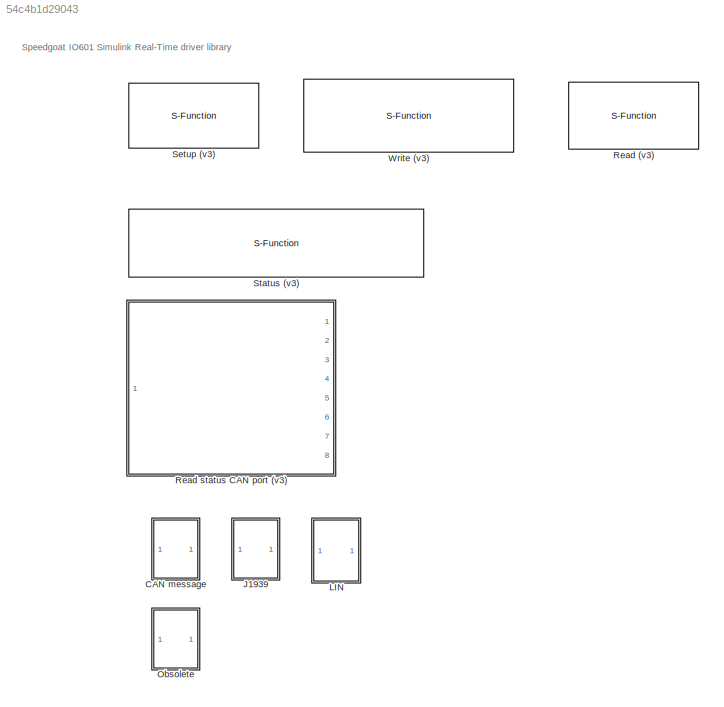
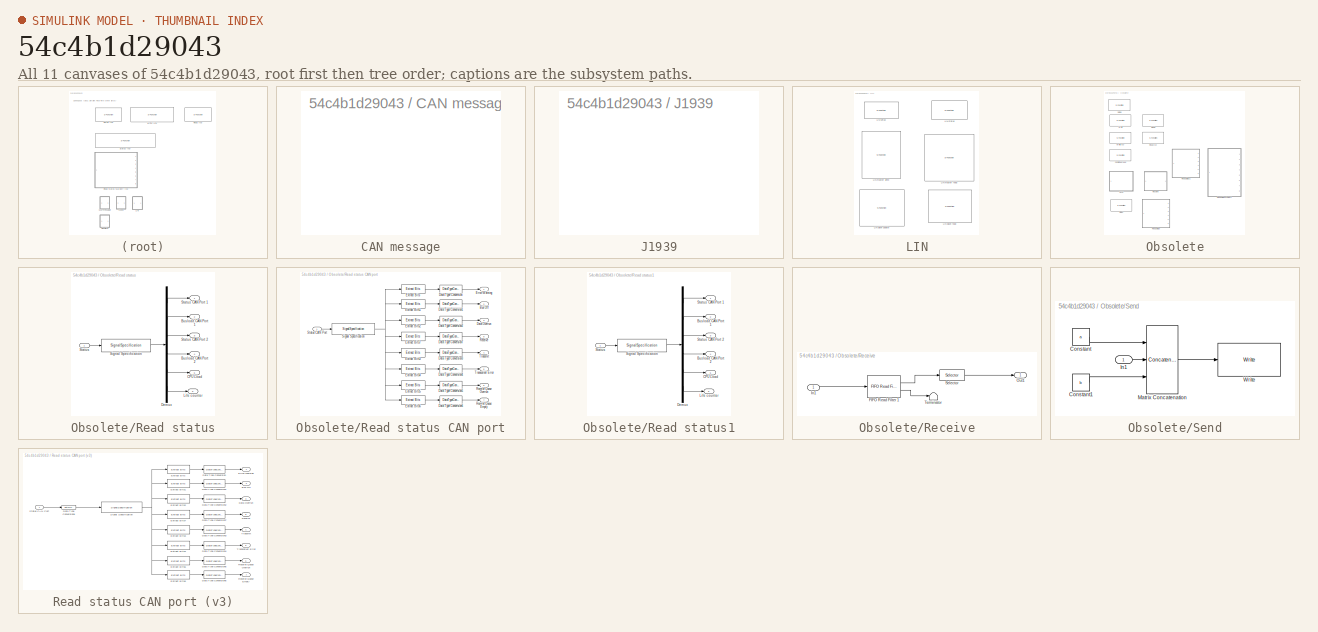
[diagram: thumbnail index - all 11 canvases of the model, root first then tree order]
MODEL slx_54c4b1d29043
KIND library
BLOCK [SubSystem] CAN message
  FunctionWithSeparateData = off
  MaskHideContents = off
  MinAlgLoopOccurrences = off
  Opaque = off
  OpenFcn = canmsglib
  Ports = []
  PropExecContextOutsideSubsystem = off
  RTWSystemCode = Auto
  RequestExecContextInheritance = off
BLOCK [SubSystem] J1939
  FunctionWithSeparateData = off
  MaskHideContents = off
  MinAlgLoopOccurrences = off
  Opaque = off
  OpenFcn = xpcJ1939lib
  Ports = []
  PropExecContextOutsideSubsystem = off
  RTWSystemCode = Auto
  RequestExecContextInheritance = off
BLOCK [SubSystem] LIN
  FunctionWithSeparateData = off
  MaskHideContents = off
  MinAlgLoopOccurrences = off
  Opaque = off
  Ports = []
  PropExecContextOutsideSubsystem = off
  RTWSystemCode = Auto
  RequestExecContextInheritance = off
BLOCK [S-Function] LIN/LIN master read
  EnableBusSupport = off
  FunctionName = sg_IO601_linmasterread_s
  InitFcn = sg_IO601_linmasterread_m(1);
  MaskCallbackString = |||
  MaskDescription = Speedgoat driver block<br>IO601 - LIN Master read<br><br>&copy; 2006 - 2013, Speedgoat GmbH, www.speedgoat.ch
  MaskDisplay = disp('Speedgoat\nIO601\nLIN Master read\nModule: 1');port_label('input',1,'id');port_label('input',2,'length');port_label('output',1,'id');port_label('output',2,'length');port_label('output',3,'data1');port_label('output',4,'data2');port_label('output',5,'data3');port_label('output',6,'data4');port_label('output',7,'data5');port_label('output',8,'data6');port_label('output',9,'data7');port_label('...<+153ch>
  MaskEnableString = on,on,on,on
  MaskHelp = Documentation for this block is not available.
  MaskIconFrame = on
  MaskIconOpaque = on
  MaskIconRotate = none
  MaskIconUnits = autoscale
  MaskInitialization = sg_IO601_linmasterread_m(2, id, nbMessages);
  MaskPortRotate = default
  MaskPromptString = IO601 module identifier:|Number of messages to read:|Sample time:|PCI slot (-1: autosearch):
  MaskSelfModifiable = on
  MaskStyleString = popup(1|2|3|4|5|6|7|8|9|10),edit,edit,edit
  MaskToolTipString = on,on,on,on
  MaskTunableValueString = on,on,on,on
  MaskType = masterreadlin_IO601
  MaskValueString = 1|1|0.001|-1
  MaskVariables = id=@1;nbMessages=@2;ts=@3;pciSlot=@4;
  MaskVisibilityString = on,on,on,off
  Parameters = id, nbMessages, ts, pciSlot
  Ports = [2, 14]
BLOCK [S-Function] LIN/LIN master write
  EnableBusSupport = off
  FunctionName = sg_IO601_linmasterwrite_s
  InitFcn = sg_IO601_linmasterwrite_m(1);
  MaskCallbackString = |||
  MaskDescription = Speedgoat driver block<br>IO601 - LIN Master write<br><br>&copy; 2006 - 2013, Speedgoat GmbH, www.speedgoat.ch
  MaskDisplay = disp('Speedgoat\nIO601\nLIN Master write\nModule: 1');port_label('input',1,'type');port_label('input',2,'id');port_label('input',3,'length');port_label('input',4,'data1');port_label('input',5,'data2');port_label('input',6,'data3');port_label('input',7,'data4');port_label('input',8,'data5');port_label('input',9,'data6');port_label('input',10,'data7');port_label('input',11,'data8');
  MaskEnableString = on,on,on,on
  MaskHelp = Documentation for this block is not available.
  MaskIconFrame = on
  MaskIconOpaque = on
  MaskIconRotate = none
  MaskIconUnits = autoscale
  MaskInitialization = sg_IO601_linmasterwrite_m(2, id, nbMessages);
  MaskPortRotate = default
  MaskPromptString = IO601 module identifier:|Number of messages to write:|Sample time:|PCI slot (-1: autosearch):
  MaskSelfModifiable = on
  MaskStyleString = popup(1|2|3|4|5|6|7|8|9|10),edit,edit,edit
  MaskToolTipString = on,on,on,on
  MaskTunableValueString = on,on,on,on
  MaskType = masterwritelin_IO601
  MaskValueString = 1|1|0.001|-1
  MaskVariables = id=@1;nbMessages=@2;ts=@3;pciSlot=@4;
  MaskVisibilityString = on,on,on,off
  Parameters = id, nbMessages, ts, pciSlot
  Ports = [11]
BLOCK [S-Function] LIN/LIN setup
  EnableBusSupport = off
  FunctionName = sg_IO601_setuplin_s
  InitFcn = sg_IO601_setuplin_m(1);
  MaskCallbackString = |||
  MaskDescription = Speedgoat driver block<br>IO601 - LIN Setup<br><br>&copy; 2006 - 2013, Speedgoat GmbH, www.speedgoat.ch
  MaskDisplay = disp('Speedgoat\nIO601\nLIN Setup\nModule: 1');
  MaskEnableString = on,on,on,on
  MaskHelp = Documentation for this block is not available.
  MaskIconFrame = on
  MaskIconOpaque = on
  MaskIconRotate = none
  MaskIconUnits = autoscale
  MaskInitialization = sg_IO601_setuplin_m(2, id, baudRate, pciSlot);
  MaskPortRotate = default
  MaskPromptString = IO601 module identifier:|Role:|Baudrate (bits/s):|PCI slot (-1: autosearch):
  MaskSelfModifiable = on
  MaskStyleString = popup(1|2|3|4|5|6|7|8|9|10),popup(Slave|Master),edit,edit
  MaskToolTipString = on,on,on,on
  MaskTunableValueString = on,on,on,on
  MaskType = setuplin_IO601
  MaskValueString = 1|Master|20000|-1
  MaskVariables = id=@1;role=@2;baudRate=@3;pciSlot=@4;
  MaskVisibilityString = on,on,on,on
  Parameters = id, baudRate, role, pciSlot
  Ports = []
BLOCK [S-Function] LIN/LIN slave read
  EnableBusSupport = off
  FunctionName = sg_IO601_linslaveread_s
  InitFcn = sg_IO601_linslaveread_m(1);
  MaskCallbackString = |||
  MaskDescription = Speedgoat driver block<br>IO601 - LIN Slave read<br><br>&copy; 2006 - 2013, Speedgoat GmbH, www.speedgoat.ch
  MaskDisplay = disp('Speedgoat\nIO601\nLIN Slave read\nModule: 1');port_label('output',1,'id');port_label('output',2,'length');port_label('output',3,'data1');port_label('output',4,'data2');port_label('output',5,'data3');port_label('output',6,'data4');port_label('output',7,'data5');port_label('output',8,'data6');port_label('output',9,'data7');port_label('output',10,'data8');port_label('output',11,'timestamp');por...<+63ch>
  MaskEnableString = on,on,on,on
  MaskHelp = Documentation for this block is not available.
  MaskIconFrame = on
  MaskIconOpaque = on
  MaskIconRotate = none
  MaskIconUnits = autoscale
  MaskInitialization = sg_IO601_linslaveread_m(2, id, nbMessages);
  MaskPortRotate = default
  MaskPromptString = IO601 module identifier:|Number of messages to read:|Sample time:|PCI slot (-1: autosearch):
  MaskSelfModifiable = on
  MaskStyleString = popup(1|2|3|4|5|6|7|8|9|10),edit,edit,edit
  MaskToolTipString = on,on,on,on
  MaskTunableValueString = on,on,on,on
  MaskType = slavereadlin_IO601
  MaskValueString = 1|1|0.001|-1
  MaskVariables = id=@1;nbMessages=@2;ts=@3;pciSlot=@4;
  MaskVisibilityString = on,on,on,off
  Parameters = id, nbMessages, ts, pciSlot
  Ports = [0, 13]
BLOCK [S-Function] LIN/LIN slave update
  EnableBusSupport = off
  FunctionName = sg_IO601_linslavewrite_s
  InitFcn = sg_IO601_linslavewrite_m(1);
  MaskCallbackString = |||
  MaskDescription = Speedgoat driver block<br>IO601 - LIN Slave update<br><br>&copy; 2006 - 2013, Speedgoat GmbH, www.speedgoat.ch
  MaskDisplay = disp('Speedgoat\nIO601\nLIN Slave update\nModule: 1');port_label('input',1,'id');port_label('input',2,'length');port_label('input',3,'data1');port_label('input',4,'data2');port_label('input',5,'data3');port_label('input',6,'data4');port_label('input',7,'data5');port_label('input',8,'data6');port_label('input',9,'data7');port_label('input',10,'data8');
  MaskEnableString = on,on,on,on
  MaskHelp = Documentation for this block is not available.
  MaskIconFrame = on
  MaskIconOpaque = on
  MaskIconRotate = none
  MaskIconUnits = autoscale
  MaskInitialization = sg_IO601_linslavewrite_m(2, id, nbMessages);
  MaskPortRotate = default
  MaskPromptString = IO601 module identifier:|Number of messages to update:|Sample time:|PCI slot (-1: autosearch):
  MaskSelfModifiable = on
  MaskStyleString = popup(1|2|3|4|5|6|7|8|9|10),edit,edit,edit
  MaskToolTipString = on,on,on,on
  MaskTunableValueString = on,on,on,on
  MaskType = slavewritelin_IO601
  MaskValueString = 1|1|0.001|-1
  MaskVariables = id=@1;nbMessages=@2;ts=@3;pciSlot=@4;
  MaskVisibilityString = on,on,on,off
  Parameters = id, nbMessages, ts, pciSlot
  Ports = [10]
BLOCK [S-Function] LIN/LIN status
  EnableBusSupport = off
  FunctionName = sg_IO601_statuslin_s
  InitFcn = sg_IO601_statuslin_m(1);
  MaskCallbackString = ||
  MaskDescription = Speedgoat driver block<br>IO601 - LIN Status<br><br>&copy; 2006 - 2013, Speedgoat GmbH, www.speedgoat.ch
  MaskDisplay = disp('Speedgoat\nIO601\nLIN Status\nModule: 1');port_label('output',1,'role');port_label('output',2,'bus load');port_label('output',3,'baudrate');port_label('output',4,'error flag');
  MaskEnableString = on,on,on
  MaskHelp = Documentation for this block is not available.
  MaskIconFrame = on
  MaskIconOpaque = on
  MaskIconRotate = none
  MaskIconUnits = autoscale
  MaskInitialization = sg_IO601_statuslin_m(2, id);
  MaskPortRotate = default
  MaskPromptString = IO601 module identifier:|Sample time:|PCI slot (-1: autosearch):
  MaskSelfModifiable = on
  MaskStyleString = popup(1|2|3|4|5|6|7|8|9|10),edit,edit
  MaskToolTipString = on,on,on
  MaskTunableValueString = on,on,on
  MaskType = statuslin_IO601
  MaskValueString = 1|0.001|[2,4]
  MaskVariables = id=@1;ts=@2;pciSlot=@3;
  MaskVisibilityString = on,on,off
  Parameters = ts, pciSlot
  Ports = [0, 4]
BLOCK [SubSystem] Obsolete
  FunctionWithSeparateData = off
  MaskHideContents = off
  MinAlgLoopOccurrences = off
  Opaque = off
  Ports = []
  PropExecContextOutsideSubsystem = off
  RTWSystemCode = Auto
  RequestExecContextInheritance = off
BLOCK [S-Function] Obsolete/Combined read
  EnableBusSupport = off
  FunctionName = sg_IO601_cread_s
  InitFcn = sg_IO601_cread_m(1);
  MaskCallbackString = ||||
  MaskDescription = Speedgoat driver block<br>IO601 - Combined read<br><br>&copy; 2006 - 2013, Speedgoat GmbH, www.speedgoat.ch
  MaskDisplay = disp('Speedgoat\nIO601\nCombined read\nModule: 1');
  MaskEnableString = on,on,on,on,on
  MaskHelp = web(['<path>'],'-helpbrowser');
  MaskIconFrame = on
  MaskIconOpaque = on
  MaskIconRotate = none
  MaskIconUnits = autoscale
  MaskInitialization = maskDisplay= sg_IO601_cread_m(2, id);
  MaskPortRotate = default
  MaskPromptString = IO601 module identifier:|Receive queue read depth [CAN port 1, CAN port 2]:|Show status output port|Sample time:|PCI slot (-1: autosearch):
  MaskSelfModifiable = on
  MaskStyleString = popup(1|2|3|4|5|6|7|8|9|10),edit,checkbox,edit,edit
  MaskToolTipString = on,on,on,on,on
  MaskTunableValueString = on,on,on,on,on
  MaskType = cread_IO601
  MaskValueString = 1|[1,0]|off|0.001|0
  MaskVariables = id=@1;depth=@2;status=@3;sampletime=@4;pciSlot=@5;
  MaskVisibilityString = on,on,on,on,off
  Parameters = id, depth, status, sampletime, pciSlot
  Ports = [0, 1]
BLOCK [S-Function] Obsolete/Read
  EnableBusSupport = off
  FunctionName = sg_IO601_read_s
  InitFcn = sg_IO601_read_m(1);
  MaskCallbackString = |||||
  MaskDescription = Speedgoat driver block<br>IO601 - Read<br><br>&copy; 2006 - 2013, Speedgoat GmbH, www.speedgoat.ch
  MaskDisplay = disp('Speedgoat\nIO601\nRead\nModule: 1');
  MaskEnableString = on,on,on,on,on,on
  MaskHelp = web(['<path>'],'-helpbrowser');
  MaskIconFrame = on
  MaskIconOpaque = on
  MaskIconRotate = none
  MaskIconUnits = autoscale
  MaskInitialization = maskDisplay= sg_IO601_read_m(2, id);
  MaskPortRotate = default
  MaskPromptString = IO601 module identifier:|CAN port:|Receive queue read depth:|Show status output port|Sample time:|PCI slot (-1: autosearch):
  MaskSelfModifiable = on
  MaskStyleString = popup(1|2|3|4|5|6|7|8|9|10),popup(1|2),edit,checkbox,edit,edit
  MaskToolTipString = on,on,on,on,on,on
  MaskTunableValueString = on,on,on,on,on,on
  MaskType = read_IO601
  MaskValueString = 1|1|1|off|0.001|0
  MaskVariables = id=@1;port=@2;depth=@3;status=@4;sampletime=@5;pciSlot=@6;
  MaskVisibilityString = on,on,on,off,on,off
  Parameters = id, port, depth, status, sampletime, pciSlot
  Ports = [0, 1]
BLOCK [S-Function] Obsolete/Read (v2)
  EnableBusSupport = off
  FunctionName = sg_IO601_read2_s
  InitFcn = sg_IO601_read_m(1);
  MaskCallbackString = ||||||
  MaskDescription = Speedgoat driver block<br>IO601 - Read<br><br>&copy; 2006 - 2013, Speedgoat GmbH, www.speedgoat.ch
  MaskDisplay = disp('Speedgoat\nIO601\nRead\nModule: 1');
  MaskEnableString = on,on,on,on,on,on,on
  MaskHelp = web(['<path>'],'-helpbrowser');
  MaskIconFrame = on
  MaskIconOpaque = on
  MaskIconRotate = none
  MaskIconUnits = autoscale
  MaskInitialization = maskDisplay= sg_IO601_read_m(2, id);
  MaskPortRotate = default
  MaskPromptString = IO601 module identifier:|Output format:|CAN port:|Receive queue read depth:|Show status output port|Sample time:|PCI slot (-1: autosearch):
  MaskSelfModifiable = on
  MaskStyleString = popup(1|2|3|4|5|6|7|8|9|10),popup(Matrix of doubles (legacy)|Vector of CAN_MESSAGE plus count),popup(1|2),edit,checkbox,edit,edit
  MaskToolTipString = on,on,on,on,on,on,on
  MaskTunableValueString = on,on,on,on,on,on,on
  MaskType = read_IO601
  MaskValueString = 1|Vector of CAN_MESSAGE plus count|1|1|off|0.001|-1
  MaskVariables = id=@1;outputFormat=@2;port=@3;depth=@4;status=@5;sampletime=@6;pciSlot=@7;
  MaskVisibilityString = on,on,on,on,off,on,off
  Parameters = id, port, depth, outputFormat, status, sampletime, pciSlot
  Ports = [0, 2]
BLOCK [SubSystem] Obsolete/Read status
  FunctionWithSeparateData = off
  MaskDescription = This block accepts as an input the output of a Status block and outputs the six status elements as individual ports. This block is just a graphical subsystem.
  MaskHideContents = off
  MaskIconFrame = on
  MaskIconOpaque = on
  MaskIconRotate = none
  MaskIconUnits = autoscale
  MaskPortRotate = default
  MaskType = readstatus_IO601
  MinAlgLoopOccurrences = off
  Opaque = off
  Ports = [1, 6]
  PropExecContextOutsideSubsystem = off
  RTWSystemCode = Auto
  RequestExecContextInheritance = off
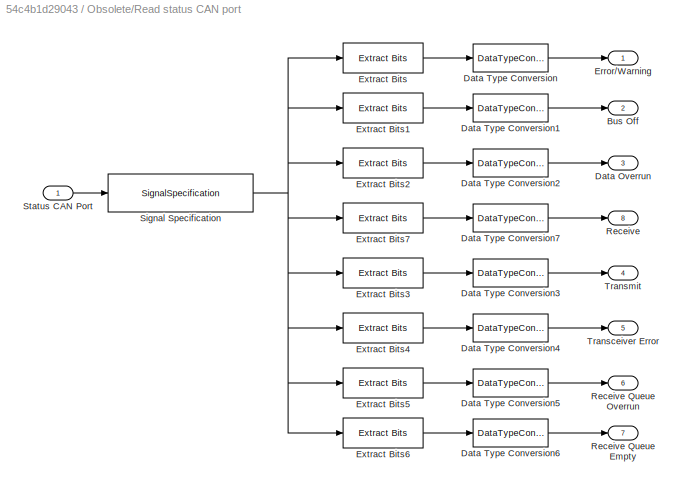
BLOCK [SubSystem] Obsolete/Read status CAN port
  FunctionWithSeparateData = off
  MaskDescription = This block accepts as an input the output of a CAN Port Status signal from the Read status block and outputs 8 individual status signals.  This block is just a graphical subsystem.
  MaskHideContents = off
  MaskIconFrame = on
  MaskIconOpaque = on
  MaskIconRotate = none
  MaskIconUnits = autoscale
  MaskPortRotate = default
  MaskType = readstatuscanport_IO601
  MinAlgLoopOccurrences = off
  Opaque = off
  Ports = [1, 8]
  PropExecContextOutsideSubsystem = off
  RTWSystemCode = Auto
  RequestExecContextInheritance = off
BLOCK [Outport] Obsolete/Read status CAN port/Bus Off
  IconDisplay = Port number
  Port = 2
BLOCK [Outport] Obsolete/Read status CAN port/Data Overrun
  IconDisplay = Port number
  Port = 3
BLOCK [DataTypeConversion] Obsolete/Read status CAN port/Data Type Conversion
  OutDataTypeStr = boolean
  RndMeth = Floor
  SaturateOnIntegerOverflow = off
BLOCK [DataTypeConversion] Obsolete/Read status CAN port/Data Type Conversion1
  OutDataTypeStr = boolean
  RndMeth = Floor
  SaturateOnIntegerOverflow = off
BLOCK [DataTypeConversion] Obsolete/Read status CAN port/Data Type Conversion2
  OutDataTypeStr = boolean
  RndMeth = Floor
  SaturateOnIntegerOverflow = off
BLOCK [DataTypeConversion] Obsolete/Read status CAN port/Data Type Conversion3
  OutDataTypeStr = boolean
  RndMeth = Floor
  SaturateOnIntegerOverflow = off
BLOCK [DataTypeConversion] Obsolete/Read status CAN port/Data Type Conversion4
  OutDataTypeStr = boolean
  RndMeth = Floor
  SaturateOnIntegerOverflow = off
BLOCK [DataTypeConversion] Obsolete/Read status CAN port/Data Type Conversion5
  OutDataTypeStr = boolean
  RndMeth = Floor
  SaturateOnIntegerOverflow = off
BLOCK [DataTypeConversion] Obsolete/Read status CAN port/Data Type Conversion6
  OutDataTypeStr = boolean
  RndMeth = Floor
  SaturateOnIntegerOverflow = off
BLOCK [DataTypeConversion] Obsolete/Read status CAN port/Data Type Conversion7
  OutDataTypeStr = boolean
  RndMeth = Floor
  SaturateOnIntegerOverflow = off
BLOCK [Outport] Obsolete/Read status CAN port/Error//Warning
  IconDisplay = Port number
BLOCK [Reference] Obsolete/Read status CAN port/Extract Bits  REF=simulink/Logic and Bit
Operations/Extract Bits
  Ports = [1, 1]
  SourceBlock = simulink/Logic and Bit\nOperations/Extract Bits
  SourceType = Extract Bits
  bitIdxRange = [1]
  bitsToExtract = Range of bits
  numBits = 8
  outScalingMode = Preserve fixed-point scaling
BLOCK [Reference] Obsolete/Read status CAN port/Extract Bits1  REF=simulink/Logic and Bit
Operations/Extract Bits
  Ports = [1, 1]
  SourceBlock = simulink/Logic and Bit\nOperations/Extract Bits
  SourceType = Extract Bits
  bitIdxRange = [2]
  bitsToExtract = Range of bits
  numBits = 8
  outScalingMode = Preserve fixed-point scaling
BLOCK [Reference] Obsolete/Read status CAN port/Extract Bits2  REF=simulink/Logic and Bit
Operations/Extract Bits
  Ports = [1, 1]
  SourceBlock = simulink/Logic and Bit\nOperations/Extract Bits
  SourceType = Extract Bits
  bitIdxRange = [3]
  bitsToExtract = Range of bits
  numBits = 8
  outScalingMode = Preserve fixed-point scaling
BLOCK [Reference] Obsolete/Read status CAN port/Extract Bits3  REF=simulink/Logic and Bit
Operations/Extract Bits
  Ports = [1, 1]
  SourceBlock = simulink/Logic and Bit\nOperations/Extract Bits
  SourceType = Extract Bits
  bitIdxRange = [5]
  bitsToExtract = Range of bits
  numBits = 8
  outScalingMode = Preserve fixed-point scaling
BLOCK [Reference] Obsolete/Read status CAN port/Extract Bits4  REF=simulink/Logic and Bit
Operations/Extract Bits
  Ports = [1, 1]
  SourceBlock = simulink/Logic and Bit\nOperations/Extract Bits
  SourceType = Extract Bits
  bitIdxRange = [6]
  bitsToExtract = Range of bits
  numBits = 8
  outScalingMode = Preserve fixed-point scaling
BLOCK [Reference] Obsolete/Read status CAN port/Extract Bits5  REF=simulink/Logic and Bit
Operations/Extract Bits
  Ports = [1, 1]
  SourceBlock = simulink/Logic and Bit\nOperations/Extract Bits
  SourceType = Extract Bits
  bitIdxRange = [8]
  bitsToExtract = Range of bits
  numBits = 8
  outScalingMode = Preserve fixed-point scaling
BLOCK [Reference] Obsolete/Read status CAN port/Extract Bits6  REF=simulink/Logic and Bit
Operations/Extract Bits
  Ports = [1, 1]
  SourceBlock = simulink/Logic and Bit\nOperations/Extract Bits
  SourceType = Extract Bits
  bitIdxRange = [9]
  bitsToExtract = Range of bits
  numBits = 8
  outScalingMode = Preserve fixed-point scaling
BLOCK [Reference] Obsolete/Read status CAN port/Extract Bits7  REF=simulink/Logic and Bit
Operations/Extract Bits
  Ports = [1, 1]
  SourceBlock = simulink/Logic and Bit\nOperations/Extract Bits
  SourceType = Extract Bits
  bitIdxRange = [4]
  bitsToExtract = Range of bits
  numBits = 8
  outScalingMode = Preserve fixed-point scaling
BLOCK [Outport] Obsolete/Read status CAN port/Receive
  IconDisplay = Port number
  Port = 8
BLOCK [Outport] Obsolete/Read status CAN port/Receive Queue Empty
  IconDisplay = Port number
  Port = 7
BLOCK [Outport] Obsolete/Read status CAN port/Receive Queue Overrun
  IconDisplay = Port number
  Port = 6
BLOCK [SignalSpecification] Obsolete/Read status CAN port/Signal Specification
  Dimensions = 1
  OutDataTypeStr = uint16
  SignalType = real
BLOCK [Inport] Obsolete/Read status CAN port/Status CAN Port
  IconDisplay = Port number
BLOCK [Outport] Obsolete/Read status CAN port/Transceiver Error
  IconDisplay = Port number
  Port = 5
BLOCK [Outport] Obsolete/Read status CAN port/Transmit
  IconDisplay = Port number
  Port = 4
BLOCK [Outport] Obsolete/Read status/Busload CAN Port 1
  IconDisplay = Port number
  Port = 2
BLOCK [Outport] Obsolete/Read status/Busload CAN Port 2
  IconDisplay = Port number
  Port = 4
BLOCK [Outport] Obsolete/Read status/CPU Load
  IconDisplay = Port number
  Port = 5
BLOCK [Demux] Obsolete/Read status/Demux
  DisplayOption = bar
  Outputs = 6
  Ports = [1, 6]
BLOCK [Outport] Obsolete/Read status/Life counter
  IconDisplay = Port number
  Port = 6
BLOCK [SignalSpecification] Obsolete/Read status/Signal Specification
  Dimensions = 6
  OutDataTypeStr = uint16
  SignalType = real
BLOCK [Inport] Obsolete/Read status/Status
  IconDisplay = Port number
BLOCK [Outport] Obsolete/Read status/Status CAN Port 1
  IconDisplay = Port number
BLOCK [Outport] Obsolete/Read status/Status CAN Port 2
  IconDisplay = Port number
  Port = 3
BLOCK [SubSystem] Obsolete/Read status1
  FunctionWithSeparateData = off
  MaskDescription = This block accepts as an input the output of a Status block and outputs the six status elements as individual ports. This block is just a graphical subsystem.
  MaskHideContents = off
  MaskIconFrame = on
  MaskIconOpaque = on
  MaskIconRotate = none
  MaskIconUnits = autoscale
  MaskPortRotate = default
  MaskType = readstatus_IO601
  MinAlgLoopOccurrences = off
  Opaque = off
  Ports = [1, 6]
  PropExecContextOutsideSubsystem = off
  RTWSystemCode = Auto
  RequestExecContextInheritance = off
BLOCK [Outport] Obsolete/Read status1/Busload CAN Port 1
  IconDisplay = Port number
  Port = 2
BLOCK [Outport] Obsolete/Read status1/Busload CAN Port 2
  IconDisplay = Port number
  Port = 4
BLOCK [Outport] Obsolete/Read status1/CPU Load
  IconDisplay = Port number
  Port = 5
BLOCK [Demux] Obsolete/Read status1/Demux
  DisplayOption = bar
  Outputs = 6
  Ports = [1, 6]
BLOCK [Outport] Obsolete/Read status1/Life counter
  IconDisplay = Port number
  Port = 6
BLOCK [SignalSpecification] Obsolete/Read status1/Signal Specification
  Dimensions = 6
  OutDataTypeStr = uint16
  SignalType = real
BLOCK [Inport] Obsolete/Read status1/Status
  IconDisplay = Port number
BLOCK [Outport] Obsolete/Read status1/Status CAN Port 1
  IconDisplay = Port number
BLOCK [Outport] Obsolete/Read status1/Status CAN Port 2
  IconDisplay = Port number
  Port = 3
BLOCK [SubSystem] Obsolete/Receive
  FunctionWithSeparateData = off
  InitFcn = sg_IO601_receive_m(1);
  MaskCallbackString = |||
  MaskDescription = Speedgoat driver block<br>IO601 - Receive<br><br>&copy; 2006 - 2013, Speedgoat GmbH, www.speedgoat.ch
  MaskDisplay = disp('Speedgoat\nIO601\nReceive\nModule: 1\nCAN any:  Std\nId: 0 (0x0)');
  MaskEnableString = on,on,on,on
  MaskHelp = Documentation for this block is not available.
  MaskHideContents = off
  MaskIconFrame = on
  MaskIconOpaque = on
  MaskIconRotate = none
  MaskIconUnits = autoscale
  MaskInitialization = maskDisplay= sg_IO601_receive_m(2, id, canPort, canType, canId);
  MaskPortRotate = default
  MaskPromptString = IO601 module identifier:|CAN port:|CAN message type:|CAN identifier:
  MaskSelfModifiable = on
  MaskStyleString = popup(1|2|3|4|5|6|7|8|9|10),popup(Any|CAN 1|CAN 2),popup(Standard (11-bit)|Extended (29-bit)),edit
  MaskToolTipString = on,on,on,on
  MaskTunableValueString = on,on,on,on
  MaskType = receive_IO601
  MaskValueString = 1|Any|Standard (11-bit)|0
  MaskVariables = id=@1;canPort=@2;canType=@3;canId=@4;
  MaskVisibilityString = on,on,on,on
  MinAlgLoopOccurrences = off
  Opaque = off
  Ports = [1, 1]
  PropExecContextOutsideSubsystem = off
  RTWSystemCode = Auto
  RequestExecContextInheritance = off
BLOCK [Reference] Obsolete/Receive/FIFO Read Filter  1  REF=xpclib/CAN/Softing/CAN-AC2-PCI
SJA 1000/FIFO Mode/FIFO Read Filter 
  Ports = [1, 2]
  SourceBlock = xpclib/CAN/Softing/CAN-AC2-PCI\nSJA 1000/FIFO Mode/FIFO Read Filter
  SourceType = canrcvfifofilter
  ctypein = SDF
  direction = Include
  ident = canId
  identsel = Include
  portin = Any
BLOCK [Inport] Obsolete/Receive/In1
  IconDisplay = Port number
BLOCK [Outport] Obsolete/Receive/Out1
  IconDisplay = Port number
BLOCK [Selector] Obsolete/Receive/Selector
  Indices = [6]
  InputPortWidth = 6
  Ports = [1, 1]
BLOCK [Terminator] Obsolete/Receive/Terminator
BLOCK [SubSystem] Obsolete/Send
  FunctionWithSeparateData = off
  InitFcn = sg_IO601_send_m(1);
  MaskCallbackString = |||||
  MaskDescription = Speedgoat driver block<br>IO601 - Send<br><br>&copy; 2006 - 2013, Speedgoat GmbH, www.speedgoat.ch
  MaskDisplay = disp('Speedgoat\nIO601\nSend\nModule: 1\nCAN 1:  Std, 8\nId: 0 (0x0)');
  MaskEnableString = on,on,on,on,on,on
  MaskHelp = Documentation for this block is not available.
  MaskHideContents = off
  MaskIconFrame = on
  MaskIconOpaque = on
  MaskIconRotate = none
  MaskIconUnits = autoscale
  MaskInitialization = [a,b,maskDisplay]=sg_IO601_send_m(2, id, canPort, canType, canId, canSize);
  MaskPortRotate = default
  MaskPromptString = IO601 module identifier:|CAN port:|CAN message type:|CAN identifier:|CAN data frame size:|Sample time:
  MaskSelfModifiable = on
  MaskStyleString = popup(1|2|3|4|5|6|7|8|9|10),popup(CAN 1|CAN 2),popup(Standard (11-bit)|Extended (29-bit)),edit,edit,edit
  MaskToolTipString = on,on,on,on,on,on
  MaskTunableValueString = on,on,on,on,on,on
  MaskType = send_IO601
  MaskValueString = 1|CAN 1|Standard (11-bit)|0|8|0.001
  MaskVariables = id=@1;canPort=@2;canType=@3;canId=@4;canSize=@5;ts=@6;
  MaskVisibilityString = on,on,on,on,on,on
  MinAlgLoopOccurrences = off
  Opaque = off
  Ports = [1]
  PropExecContextOutsideSubsystem = off
  RTWSystemCode = Auto
  RequestExecContextInheritance = off
BLOCK [Constant] Obsolete/Send/Constant
  Value = a
  VectorParams1D = off
BLOCK [Constant] Obsolete/Send/Constant1
  Value = b
  VectorParams1D = off
BLOCK [Inport] Obsolete/Send/In1
  IconDisplay = Port number
  PortDimensions = 1
BLOCK [Concatenate] Obsolete/Send/Matrix Concatenation
  ConcatenateDimension = 2
  Mode = Multidimensional array
  NumInputs = 3
  Ports = [3, 1]
BLOCK [Reference] Obsolete/Send/Write  REF=speedgoatlib_IO601/Obsolete/Write
  Ports = [1]
  SourceBlock = speedgoatlib_IO601/Obsolete/Write
  SourceType = write_IO601
  id = 1
  pciSlot = 0
  sampletime = ts
  status = off
BLOCK [S-Function] Obsolete/Setup
  EnableBusSupport = off
  FunctionName = sg_IO601_setup_s
  InitFcn = sg_IO601_setup_m(1);
  MaskCallbackString = sg_IO601_setup_m(2);||||||||||||||||||
  MaskDescription = Speedgoat driver block<br>IO601 - Setup<br><br>&copy; 2006 - 2013, Speedgoat GmbH, www.speedgoat.ch
  MaskDisplay = disp('Speedgoat\nIO601\nSetup\nModule: 1');
  MaskEnableString = on,on,on,on,on,on,on,on,on,on,on,on,on,on,on,on,on,on,on
  MaskHelp = web(['<path>'],'-helpbrowser');
  MaskIconFrame = on
  MaskIconOpaque = on
  MaskIconRotate = none
  MaskIconUnits = autoscale
  MaskInitialization = can1str='';can2str='';\nif can1bus==2, can1str=' LS'; end;if can2bus==2, can2str=' LS'; end;\ninitarray=0;\ntermarray=0;\n[can1UserBR, can2UserBR, initarray, termarray]= sg_IO601_setup_m(3, id, can1bus, can1Baudrate, can1UserBR, acc1, filter1std, ...\n                filter1ext, can2bus, can2Baudrate, can2UserBR, acc2, filter2std, filter2ext, ...\n                init, term, pciSlot);
  MaskPortRotate = default
  MaskPromptString = Parameter group:|IO601 module identifier:|Enable|Physical bus:|Baud rate:|User defined baud rate [BRP, SJW, TSEG1, TSEG2]:|Acceptance [StdMask, StdCode, ExtMask, ExtCode]:|Standard identifier receive filter vector:|Extended identifier receive filter vector:|Enable|Physical bus:|Baud rate:|User defined baud rate [BRP, SJW, TSEG1, TSEG2]:|Acceptance [StdMask, StdCode, ExtMask, ExtCode]:|Standard ide...<+165ch>
  MaskSelfModifiable = on
  MaskStyleString = popup(Module setup|CAN 1 port setup|CAN 2 port setup|Initialisation and termination setup),popup(1|2|3|4|5|6|7|8|9|10),checkbox,popup(Highspeed |Lowspeed),popup(1 MBaud|800 kBaud|500 kBaud|250 kBaud|125 kBaud|100 kBaud|10 kBaud|User defined),edit,edit,edit,edit,checkbox,popup(Highspeed|Lowspeed),popup(1 MBaud|800 kBaud|500 kBaud|250 kBaud|125 kBaud|100 kBaud|10 kBaud|User defined),edit,edit,edit,e...<+18ch>
  MaskToolTipString = on,on,on,on,on,on,on,on,on,on,on,on,on,on,on,on,on,on,on
  MaskTunableValueString = on,on,on,on,on,on,on,on,on,on,on,on,on,on,on,on,on,on,on
  MaskType = setup_IO601
  MaskValueString = Module setup|1|on|Highspeed |1 MBaud|[1,1,5,2]|[0,0,0,0]|[]|[]|on|Highspeed|1 MBaud|[1,1,5,2]|[0,0,0,0]|[]|[]|[]|[]|-1
  MaskVariables = group=@1;id=@2;can1enable=@3;can1bus=@4;can1Baudrate=@5;can1UserBR=@6;acc1=@7;filter1std=@8;filter1ext=@9;can2enable=@10;can2bus=@11;can2Baudrate=@12;can2UserBR=@13;acc2=@14;filter2std=@15;filter2ext=@16;init=@17;term=@18;pciSlot=@19;
  MaskVisibilityString = on,on,off,off,off,off,off,off,off,off,off,off,off,off,off,off,off,off,on
  Parameters = id, can1enable, can1bus, can1UserBR, acc1, filter1std, filter1ext, can2enable, can2bus, can2UserBR, acc2, filter2std, filter2ext, initarray, termarray, pciSlot
  Ports = []
BLOCK [S-Function] Obsolete/Status
  EnableBusSupport = off
  FunctionName = sg_IO601_status_s
  InitFcn = sg_IO601_status_m(1);
  MaskCallbackString = ||
  MaskDescription = Speedgoat driver block<br>IO601 - Status<br><br>&copy; 2006 - 2013, Speedgoat GmbH, www.speedgoat.ch
  MaskDisplay = disp('Speedgoat\nIO601\nStatus\nModule: 1');
  MaskEnableString = on,on,on
  MaskHelp = web(['<path>'],'-helpbrowser');
  MaskIconFrame = on
  MaskIconOpaque = on
  MaskIconRotate = none
  MaskIconUnits = autoscale
  MaskInitialization = maskDisplay= sg_IO601_status_m(2, id);
  MaskPortRotate = default
  MaskPromptString = IO601 module identifier:|Sample time:|PCI slot (-1: autosearch):
  MaskSelfModifiable = on
  MaskStyleString = popup(1|2|3|4|5|6|7|8|9|10),edit,edit
  MaskToolTipString = on,on,on
  MaskTunableValueString = on,on,on
  MaskType = status_IO601
  MaskValueString = 1|0.001|0
  MaskVariables = id=@1;sampletime=@2;pciSlot=@3;
  MaskVisibilityString = on,on,off
  Parameters = id, sampletime, pciSlot
  Ports = [0, 1]
BLOCK [S-Function] Obsolete/Write
  EnableBusSupport = off
  FunctionName = sg_IO601_write_s
  InitFcn = sg_IO601_write_m(1);
  MaskCallbackString = |||
  MaskDescription = Speedgoat driver block<br>IO601 - Write<br><br>&copy; 2006 - 2013, Speedgoat GmbH, www.speedgoat.ch
  MaskDisplay = disp('Speedgoat\nIO601\nWrite\nModule: 1');
  MaskEnableString = on,on,on,on
  MaskHelp = web(['<path>'],'-helpbrowser');
  MaskIconFrame = on
  MaskIconOpaque = on
  MaskIconRotate = none
  MaskIconUnits = autoscale
  MaskInitialization = maskDisplay= sg_IO601_write_m(2, id);
  MaskPortRotate = default
  MaskPromptString = IO601 module identifier:|Show status output port|Sample time:|PCI slot (-1: autosearch):
  MaskSelfModifiable = on
  MaskStyleString = popup(1|2|3|4|5|6|7|8|9|10),checkbox,edit,edit
  MaskToolTipString = on,on,on,on
  MaskTunableValueString = on,on,on,on
  MaskType = write_IO601
  MaskValueString = 1|off|0.001|0
  MaskVariables = id=@1;status=@2;sampletime=@3;pciSlot=@4;
  MaskVisibilityString = on,on,on,off
  Parameters = id, status, sampletime, pciSlot
  Ports = [1]
BLOCK [S-Function] Obsolete/Write (v2)
  EnableBusSupport = off
  FunctionName = sg_IO601_write2_s
  InitFcn = sg_IO601_write_m(1);
  MaskCallbackString = |||||||
  MaskDescription = Speedgoat driver block<br>IO601 - Write<br><br>&copy; 2006 - 2013, Speedgoat GmbH, www.speedgoat.ch
  MaskDisplay = disp('Speedgoat\nIO601\nWrite\nModule: 1');
  MaskEnableString = on,on,on,on,on,on,on,on
  MaskHelp = web(['<path>'],'-helpbrowser');
  MaskIconFrame = on
  MaskIconOpaque = on
  MaskIconRotate = none
  MaskIconUnits = autoscale
  MaskInitialization = maskDisplay= sg_IO601_write_m(2, id);
  MaskPortRotate = default
  MaskPromptString = IO601 module identifier:|Show input count port|data input port type:|Port (if input is CAN_MESSAGE):|Max CAN Message Transmit (Per Sample Time):|Show status output port|Sample time:|PCI slot (-1: autosearch):
  MaskSelfModifiable = on
  MaskStyleString = popup(1|2|3|4|5|6|7|8|9|10),checkbox,popup(Matrix of double (m*5 or m*6)|CAN_MESSAGE),popup(1|2),edit,checkbox,edit,edit
  MaskToolTipString = on,on,on,on,on,on,on,on
  MaskTunableValueString = on,on,on,on,on,on,on,on
  MaskType = write_IO601
  MaskValueString = 1|on|CAN_MESSAGE|2|20|off|0.001|-1
  MaskVariables = id=@1;count=@2;inputType=@3;port=@4;maxMsg=@5;status=@6;sampletime=@7;pciSlot=@8;
  MaskVisibilityString = on,on,on,on,on,on,on,off
  Parameters = id, status, inputType, count, maxMsg, port, sampletime, pciSlot
  Ports = [2]
BLOCK [S-Function] Read (v3)
  EnableBusSupport = off
  FunctionName = sg_IO601_read_s_3
  InitFcn = sg_init_modules('IO601', false, 'setup_IO601_3');
  MaskCallbackString = |||||||
  MaskDescription = Speedgoat driver block<br>IO601 - Read<br><br>&copy; 2006 - 2014, Speedgoat GmbH, www.speedgoat.ch
  MaskDisplay = disp('Speedgoat\nIO601\nRead\nModule: 1');port_label('output', 1, 'CAN port 1');port_label('output', 2, 'count 1');port_label('output', 3, 'CAN port 2');port_label('output', 4, 'count 2');
  MaskEnableString = on,on,on,on,on,on,on,on
  MaskHelp = web(['<userpath>\Documents\MATLAB\trunk\thirdpartydrivers\sg_help\comms\dialog_fields_io601_read.htm'],'-helpbrowser');
  MaskIconFrame = on
  MaskIconOpaque = on
  MaskIconRotate = none
  MaskIconUnits = autoscale
  MaskInitialization = sg_IO601_read_m_3(id, port1, port2);
  MaskPortRotate = default
  MaskPromptString = IO601 module identifier:|Output port datatype:|Show CAN message output port 1|Show CAN message output port 2|Receive queue read depth:|Receive queue read depth:|Sample time:|PCI slot (-1: autosearch):
  MaskSelfModifiable = on
  MaskStyleString = popup(1|2|3|4|5|6|7|8|9|10),popup(Matrix of doubles (legacy)|Vector of CAN_MESSAGE),checkbox,checkbox,edit,edit,edit,edit
  MaskTabNameString = Module setup,Input and output port configuration,Input and output port configuration,Input and output port configuration,CAN port 1,CAN port 2,Module setup,Module setup
  MaskToolTipString = on,on,on,on,on,on,on,on
  MaskTunableValueString = on,on,on,on,on,on,on,on
  MaskType = read_IO601_3
  MaskValueString = 1|Matrix of doubles (legacy)|on|on|4|4|0.001|-1
  MaskVariables = id=@1;outputFormat=@2;port1=@3;port2=@4;depth1=@5;depth2=@6;sampletime=@7;pciSlot=@8;
  MaskVisibilityString = on,on,on,on,on,on,on,off
  Parameters = depth1, depth2, outputFormat, port1, port2, sampletime, pciSlot
  Ports = [0, 4]
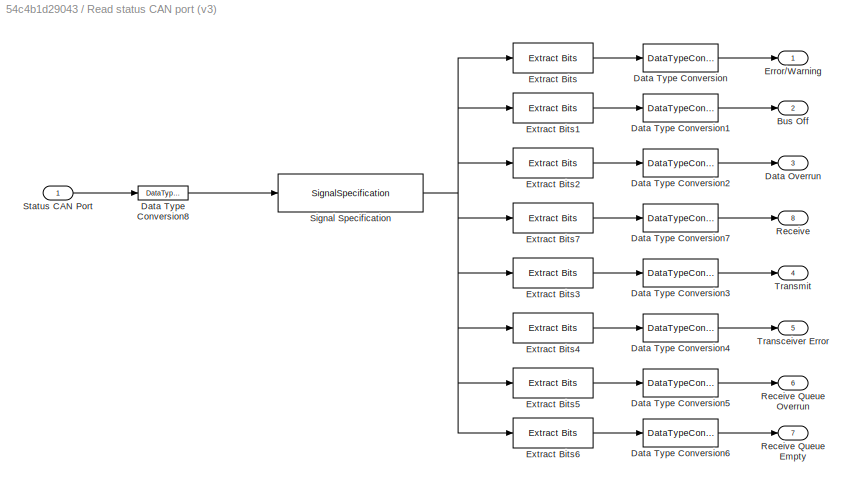
BLOCK [SubSystem] Read status CAN port (v3)
  FunctionWithSeparateData = off
  MaskDescription = This block accepts as an input the output of a CAN Port Status signal from the Read status block and outputs 8 individual status signals.  This block is just a graphical subsystem.
  MaskHelp = web(fullfile(speedgoatroot,'sg_help','comms','read_status_can_port_driver_block_io601.htm'), '-helpbrowser');
  MaskHideContents = off
  MaskIconFrame = on
  MaskIconOpaque = on
  MaskIconRotate = none
  MaskIconUnits = autoscale
  MaskPortRotate = default
  MaskType = readstatuscanport_IO601
  MinAlgLoopOccurrences = off
  Opaque = off
  Ports = [1, 8]
  PropExecContextOutsideSubsystem = off
  RTWSystemCode = Auto
  RequestExecContextInheritance = off
BLOCK [Outport] Read status CAN port (v3)/Bus Off
  IconDisplay = Port number
  Port = 2
BLOCK [Outport] Read status CAN port (v3)/Data Overrun
  IconDisplay = Port number
  Port = 3
BLOCK [DataTypeConversion] Read status CAN port (v3)/Data Type Conversion
  OutDataTypeStr = boolean
  RndMeth = Floor
  SaturateOnIntegerOverflow = off
BLOCK [DataTypeConversion] Read status CAN port (v3)/Data Type Conversion1
  OutDataTypeStr = boolean
  RndMeth = Floor
  SaturateOnIntegerOverflow = off
BLOCK [DataTypeConversion] Read status CAN port (v3)/Data Type Conversion2
  OutDataTypeStr = boolean
  RndMeth = Floor
  SaturateOnIntegerOverflow = off
BLOCK [DataTypeConversion] Read status CAN port (v3)/Data Type Conversion3
  OutDataTypeStr = boolean
  RndMeth = Floor
  SaturateOnIntegerOverflow = off
BLOCK [DataTypeConversion] Read status CAN port (v3)/Data Type Conversion4
  OutDataTypeStr = boolean
  RndMeth = Floor
  SaturateOnIntegerOverflow = off
BLOCK [DataTypeConversion] Read status CAN port (v3)/Data Type Conversion5
  OutDataTypeStr = boolean
  RndMeth = Floor
  SaturateOnIntegerOverflow = off
BLOCK [DataTypeConversion] Read status CAN port (v3)/Data Type Conversion6
  OutDataTypeStr = boolean
  RndMeth = Floor
  SaturateOnIntegerOverflow = off
BLOCK [DataTypeConversion] Read status CAN port (v3)/Data Type Conversion7
  OutDataTypeStr = boolean
  RndMeth = Floor
  SaturateOnIntegerOverflow = off
BLOCK [DataTypeConversion] Read status CAN port (v3)/Data Type Conversion8
  RndMeth = Floor
  SaturateOnIntegerOverflow = off
BLOCK [Outport] Read status CAN port (v3)/Error//Warning
  IconDisplay = Port number
BLOCK [Reference] Read status CAN port (v3)/Extract Bits  REF=simulink/Logic and Bit
Operations/Extract Bits
  Ports = [1, 1]
  SourceBlock = simulink/Logic and Bit\nOperations/Extract Bits
  SourceType = Extract Bits
  bitIdxRange = [1]
  bitsToExtract = Range of bits
  numBits = 8
  outScalingMode = Preserve fixed-point scaling
BLOCK [Reference] Read status CAN port (v3)/Extract Bits1  REF=simulink/Logic and Bit
Operations/Extract Bits
  Ports = [1, 1]
  SourceBlock = simulink/Logic and Bit\nOperations/Extract Bits
  SourceType = Extract Bits
  bitIdxRange = [2]
  bitsToExtract = Range of bits
  numBits = 8
  outScalingMode = Preserve fixed-point scaling
BLOCK [Reference] Read status CAN port (v3)/Extract Bits2  REF=simulink/Logic and Bit
Operations/Extract Bits
  Ports = [1, 1]
  SourceBlock = simulink/Logic and Bit\nOperations/Extract Bits
  SourceType = Extract Bits
  bitIdxRange = [3]
  bitsToExtract = Range of bits
  numBits = 8
  outScalingMode = Preserve fixed-point scaling
BLOCK [Reference] Read status CAN port (v3)/Extract Bits3  REF=simulink/Logic and Bit
Operations/Extract Bits
  Ports = [1, 1]
  SourceBlock = simulink/Logic and Bit\nOperations/Extract Bits
  SourceType = Extract Bits
  bitIdxRange = [5]
  bitsToExtract = Range of bits
  numBits = 8
  outScalingMode = Preserve fixed-point scaling
BLOCK [Reference] Read status CAN port (v3)/Extract Bits4  REF=simulink/Logic and Bit
Operations/Extract Bits
  Ports = [1, 1]
  SourceBlock = simulink/Logic and Bit\nOperations/Extract Bits
  SourceType = Extract Bits
  bitIdxRange = [6]
  bitsToExtract = Range of bits
  numBits = 8
  outScalingMode = Preserve fixed-point scaling
BLOCK [Reference] Read status CAN port (v3)/Extract Bits5  REF=simulink/Logic and Bit
Operations/Extract Bits
  Ports = [1, 1]
  SourceBlock = simulink/Logic and Bit\nOperations/Extract Bits
  SourceType = Extract Bits
  bitIdxRange = [8]
  bitsToExtract = Range of bits
  numBits = 8
  outScalingMode = Preserve fixed-point scaling
BLOCK [Reference] Read status CAN port (v3)/Extract Bits6  REF=simulink/Logic and Bit
Operations/Extract Bits
  Ports = [1, 1]
  SourceBlock = simulink/Logic and Bit\nOperations/Extract Bits
  SourceType = Extract Bits
  bitIdxRange = [9]
  bitsToExtract = Range of bits
  numBits = 8
  outScalingMode = Preserve fixed-point scaling
BLOCK [Reference] Read status CAN port (v3)/Extract Bits7  REF=simulink/Logic and Bit
Operations/Extract Bits
  Ports = [1, 1]
  SourceBlock = simulink/Logic and Bit\nOperations/Extract Bits
  SourceType = Extract Bits
  bitIdxRange = [4]
  bitsToExtract = Range of bits
  numBits = 8
  outScalingMode = Preserve fixed-point scaling
BLOCK [Outport] Read status CAN port (v3)/Receive
  IconDisplay = Port number
  Port = 8
BLOCK [Outport] Read status CAN port (v3)/Receive Queue Empty
  IconDisplay = Port number
  Port = 7
BLOCK [Outport] Read status CAN port (v3)/Receive Queue Overrun
  IconDisplay = Port number
  Port = 6
BLOCK [SignalSpecification] Read status CAN port (v3)/Signal Specification
  Dimensions = 1
  OutDataTypeStr = uint16
  SignalType = real
BLOCK [Inport] Read status CAN port (v3)/Status CAN Port
  IconDisplay = Port number
BLOCK [Outport] Read status CAN port (v3)/Transceiver Error
  IconDisplay = Port number
  Port = 5
BLOCK [Outport] Read status CAN port (v3)/Transmit
  IconDisplay = Port number
  Port = 4
BLOCK [S-Function] Setup (v3)
  EnableBusSupport = off
  FunctionName = sg_IO601_setup_s_3
  InitFcn = sg_init_modules('IO601', true, '');
  MaskCallbackString = |||||||||||||
  MaskDescription = Speedgoat driver block<br>IO601 - Setup<br><br>&copy; 2006 - 2014, Speedgoat GmbH, www.speedgoat.ch
  MaskDisplay = disp('Speedgoat\nIO601\nSetup\nModule: 1');
  MaskEnableString = on,on,on,on,on,on,on,on,on,on,on,on,on,on
  MaskHelp = web(['<userpath>\Documents\MATLAB\trunk\thirdpartydrivers\sg_help\comms\dialog_fields_io601.htm'],'-helpbrowser');
  MaskIconFrame = on
  MaskIconOpaque = on
  MaskIconRotate = none
  MaskIconUnits = autoscale
  MaskInitialization = can1str='';can2str='';\nif can1bus==2, can1str=' LS'; end;if can2bus==2, can2str=' LS'; end;\n%[can1UserBR, can2UserBR, initarray, termarray]= sg_IO601_setup_m(3, id, can1bus, can1Baudrate, can1UserBR, acc1, filter1std, ...\n%                filter1ext, can2bus, can2Baudrate, can2UserBR, acc2, filter2std, filter2ext, ...\n%                init, term, pciSlot);\n\n\n\n[can1UserBR, can2UserBR, stdAcc1, stdA...<+144ch>
  MaskPortRotate = default
  MaskPromptString = IO601 module identifier:|Enable|Physical bus:|Baud rate:|User defined baud rate [BRP, SJW, TSEG1, TSEG2]:|Acceptance [StdMask1, StdCode1,StdMask2, StdCode2]:|Acceptance [ExtMask1, ExtCode1, ExtMask2, ExtCode2]:|Enable|Physical bus:|Baud rate:|User defined baud rate [BRP, SJW, TSEG1, TSEG2]:|Acceptance [StdMask1, StdCode1,StdMask2, StdCode2]:|Acceptance [ExtMask1, ExtCode1, ExtMask2, ExtCode2]:|PCI...<+23ch>
  MaskSelfModifiable = on
  MaskStyleString = popup(1|2|3|4|5|6|7|8|9|10),checkbox,popup(Highspeed |Lowspeed),popup(1 MBaud|800 kBaud|500 kBaud|250 kBaud|125 kBaud|100 kBaud|10 kBaud|User defined),edit,edit,edit,checkbox,popup(Highspeed|Lowspeed),popup(1 MBaud|800 kBaud|500 kBaud|250 kBaud|125 kBaud|100 kBaud|10 kBaud|User defined),edit,edit,edit,edit
  MaskTabNameString = Module setup,CAN port 1,CAN port 1,CAN port 1,CAN port 1,CAN port 1,CAN port 1,CAN port 2,CAN port 2,CAN port 2,CAN port 2,CAN port 2,CAN port 2,Module setup
  MaskToolTipString = on,on,on,on,on,on,on,on,on,on,on,on,on,on
  MaskTunableValueString = on,on,on,on,on,on,on,on,on,on,on,on,on,on
  MaskType = setup_IO601_3
  MaskValueString = 1|on|Highspeed |1 MBaud|[1,1,5,2]|[0,0,0,0]|[0,0,0,0]|on|Highspeed|1 MBaud|[1,1,5,2]|[0,0,0,0]|[0,0,0,0]|-1
  MaskVariables = id=@1;can1enable=@2;can1bus=@3;can1Baudrate=@4;can1UserBR=@5;stdAcc1=@6;extAcc1=@7;can2enable=@8;can2bus=@9;can2Baudrate=@10;can2UserBR=@11;stdAcc2=@12;extAcc2=@13;pciSlot=@14;
  MaskVisibilityString = on,on,on,on,on,on,on,on,on,on,on,on,on,on
  Parameters = can1enable, can1bus, can1UserBR, stdAcc1, extAcc1, can2enable, can2bus, can2UserBR, stdAcc2, extAcc2, pciSlot
  Ports = []
BLOCK [S-Function] Status (v3)
  EnableBusSupport = off
  FunctionName = sg_IO601_status_s_3
  InitFcn = sg_init_modules('IO601', false, 'setup_IO601_3');
  MaskCallbackString = ||
  MaskDescription = Speedgoat driver block<br>IO601 - Status<br><br>&copy; 2006 - 2014, Speedgoat GmbH, www.speedgoat.ch
  MaskDisplay = disp('Speedgoat\nIO601\nStatus\nModule: 1');port_label('output', 1, 'CAN port 1 status');port_label('output', 2, 'CAN port 1 bus last');port_label('output', 3, 'CAN port 2 status');port_label('output', 4, 'CAN port 2 bus last');port_label('output', 5, 'CPU last');port_label('output', 6, 'Live counter');
  MaskEnableString = on,on,on
  MaskHelp = web(['<userpath>\Documents\MATLAB\trunk\thirdpartydrivers\sg_help\comms\dialog_fields_io601_status.htm'],'-helpbrowser');
  MaskIconFrame = on
  MaskIconOpaque = on
  MaskIconRotate = none
  MaskIconUnits = autoscale
  MaskInitialization = sg_IO601_status_m_3(id)
  MaskPortRotate = default
  MaskPromptString = IO601 module identifier:|Sample time:|PCI slot (-1: autosearch):
  MaskSelfModifiable = on
  MaskStyleString = popup(1|2|3|4|5|6|7|8|9|10),edit,edit
  MaskToolTipString = on,on,on
  MaskTunableValueString = on,on,on
  MaskType = status_IO601_3
  MaskValueString = 1|0.001|-1
  MaskVariables = id=@1;ts=@2;pciSlot=@3;
  MaskVisibilityString = on,on,off
  Parameters = ts, pciSlot
  Ports = [0, 6]
BLOCK [S-Function] Write (v3)
  EnableBusSupport = off
  FunctionName = sg_IO601_write_s_3
  InitFcn = sg_init_modules('IO601', false, 'setup_IO601_3');
  MaskCallbackString = ||||||||
  MaskDescription = Speedgoat driver block<br>IO601 - Write<br><br>&copy; 2006 - 2014, Speedgoat GmbH, www.speedgoat.ch
  MaskDisplay = disp('Speedgoat\nIO601\nWrite\nModule: 1');port_label('input', 1, 'CAN message');port_label('input', 2, 'count');
  MaskEnableString = on,on,on,on,on,on,on,on,on
  MaskHelp = web(['<userpath>\Documents\MATLAB\trunk\thirdpartydrivers\sg_help\comms\dialog_fields_write_io601.htm'],'-helpbrowser');
  MaskIconFrame = on
  MaskIconOpaque = on
  MaskIconRotate = none
  MaskIconUnits = autoscale
  MaskInitialization = [initarray, termarray] = sg_IO601_write_m_3(id, inputType, status, init, term);
  MaskPortRotate = default
  MaskPromptString = IO601 module identifier:|Sample time:|PCI slot (-1: autosearch):|CAN message input port datatype:|Port (if input is CAN_MESSAGE):|CAN messages pool size (only relevant with CAN_MESSAGE option):|Show status output port|Initialization command structure:|Termination command structure:
  MaskSelfModifiable = on
  MaskStyleString = popup(1|2|3|4|5|6|7|8|9|10),edit,edit,popup(Matrix of double (m*5 or m*6)|CAN_MESSAGE plus count),popup(1|2),edit,checkbox,edit,edit
  MaskTabNameString = Module setup,Module setup,Module setup,Input and output port configuration,Input and output port configuration,Input and output port configuration,Input and output port configuration,Init and termination setup,Init and termination setup
  MaskToolTipString = on,on,on,on,on,on,on,on,on
  MaskTunableValueString = on,on,on,on,on,on,on,on,on
  MaskType = write_IO601_3
  MaskValueString = 1|0.001|-1|CAN_MESSAGE plus count|1|1|off|[]|[]
  MaskVariables = id=@1;sampletime=@2;pciSlot=@3;inputType=@4;port=@5;maxMsg=@6;status=@7;init=@8;term=@9;
  MaskVisibilityString = on,on,off,on,on,on,on,on,on
  Parameters = id, status, inputType, maxMsg, port, initarray, termarray, sampletime, pciSlot
  Ports = [2]
  Priority = 1
ANNOTATION (root): Speedgoat IO601 Simulink Real-Time driver library
LINE Obsolete/Read status CAN port/Data Type Conversion1:1 -> Obsolete/Read status CAN port/Bus Off:1
LINE Obsolete/Read status CAN port/Data Type Conversion2:1 -> Obsolete/Read status CAN port/Data Overrun:1
LINE Obsolete/Read status CAN port/Data Type Conversion3:1 -> Obsolete/Read status CAN port/Transmit:1
LINE Obsolete/Read status CAN port/Data Type Conversion4:1 -> Obsolete/Read status CAN port/Transceiver Error:1
LINE Obsolete/Read status CAN port/Data Type Conversion5:1 -> Obsolete/Read status CAN port/Receive Queue Overrun:1
LINE Obsolete/Read status CAN port/Data Type Conversion6:1 -> Obsolete/Read status CAN port/Receive Queue Empty:1
LINE Obsolete/Read status CAN port/Data Type Conversion7:1 -> Obsolete/Read status CAN port/Receive:1
LINE Obsolete/Read status CAN port/Data Type Conversion:1 -> Obsolete/Read status CAN port/Error//Warning:1
LINE Obsolete/Read status CAN port/Extract Bits1:1 -> Obsolete/Read status CAN port/Data Type Conversion1:1
LINE Obsolete/Read status CAN port/Extract Bits2:1 -> Obsolete/Read status CAN port/Data Type Conversion2:1
LINE Obsolete/Read status CAN port/Extract Bits3:1 -> Obsolete/Read status CAN port/Data Type Conversion3:1
LINE Obsolete/Read status CAN port/Extract Bits4:1 -> Obsolete/Read status CAN port/Data Type Conversion4:1
LINE Obsolete/Read status CAN port/Extract Bits5:1 -> Obsolete/Read status CAN port/Data Type Conversion5:1
LINE Obsolete/Read status CAN port/Extract Bits6:1 -> Obsolete/Read status CAN port/Data Type Conversion6:1
LINE Obsolete/Read status CAN port/Extract Bits7:1 -> Obsolete/Read status CAN port/Data Type Conversion7:1
LINE Obsolete/Read status CAN port/Extract Bits:1 -> Obsolete/Read status CAN port/Data Type Conversion:1
NET Obsolete/Read status CAN port/Signal Specification:1 -> Obsolete/Read status CAN port/Extract Bits1:1, Obsolete/Read status CAN port/Extract Bits2:1, Obsolete/Read status CAN port/Extract Bits3:1, Obsolete/Read status CAN port/Extract Bits4:1, Obsolete/Read status CAN port/Extract Bits5:1, Obsolete/Read status CAN port/Extract Bits6:1, Obsolete/Read status CAN port/Extract Bits7:1, Obsolete/Read status CAN port/Extract Bits:1
LINE Obsolete/Read status CAN port/Status CAN Port:1 -> Obsolete/Read status CAN port/Signal Specification:1
LINE Obsolete/Read status/Demux:1 -> Obsolete/Read status/Status CAN Port 1:1
LINE Obsolete/Read status/Demux:2 -> Obsolete/Read status/Busload CAN Port 1:1
LINE Obsolete/Read status/Demux:3 -> Obsolete/Read status/Status CAN Port 2:1
LINE Obsolete/Read status/Demux:4 -> Obsolete/Read status/Busload CAN Port 2:1
LINE Obsolete/Read status/Demux:5 -> Obsolete/Read status/CPU Load:1
LINE Obsolete/Read status/Demux:6 -> Obsolete/Read status/Life counter:1
LINE Obsolete/Read status/Signal Specification:1 -> Obsolete/Read status/Demux:1
LINE Obsolete/Read status/Status:1 -> Obsolete/Read status/Signal Specification:1
LINE Obsolete/Read status1/Demux:1 -> Obsolete/Read status1/Status CAN Port 1:1
LINE Obsolete/Read status1/Demux:2 -> Obsolete/Read status1/Busload CAN Port 1:1
LINE Obsolete/Read status1/Demux:3 -> Obsolete/Read status1/Status CAN Port 2:1
LINE Obsolete/Read status1/Demux:4 -> Obsolete/Read status1/Busload CAN Port 2:1
LINE Obsolete/Read status1/Demux:5 -> Obsolete/Read status1/CPU Load:1
LINE Obsolete/Read status1/Demux:6 -> Obsolete/Read status1/Life counter:1
LINE Obsolete/Read status1/Signal Specification:1 -> Obsolete/Read status1/Demux:1
LINE Obsolete/Read status1/Status:1 -> Obsolete/Read status1/Signal Specification:1
LINE Read status CAN port (v3)/Data Type Conversion1:1 -> Read status CAN port (v3)/Bus Off:1
LINE Read status CAN port (v3)/Data Type Conversion2:1 -> Read status CAN port (v3)/Data Overrun:1
LINE Read status CAN port (v3)/Data Type Conversion3:1 -> Read status CAN port (v3)/Transmit:1
LINE Read status CAN port (v3)/Data Type Conversion4:1 -> Read status CAN port (v3)/Transceiver Error:1
LINE Read status CAN port (v3)/Data Type Conversion5:1 -> Read status CAN port (v3)/Receive Queue Overrun:1
LINE Read status CAN port (v3)/Data Type Conversion6:1 -> Read status CAN port (v3)/Receive Queue Empty:1
LINE Read status CAN port (v3)/Data Type Conversion7:1 -> Read status CAN port (v3)/Receive:1
LINE Read status CAN port (v3)/Data Type Conversion8:1 -> Read status CAN port (v3)/Signal Specification:1
LINE Read status CAN port (v3)/Data Type Conversion:1 -> Read status CAN port (v3)/Error//Warning:1
LINE Read status CAN port (v3)/Extract Bits1:1 -> Read status CAN port (v3)/Data Type Conversion1:1
LINE Read status CAN port (v3)/Extract Bits2:1 -> Read status CAN port (v3)/Data Type Conversion2:1
LINE Read status CAN port (v3)/Extract Bits3:1 -> Read status CAN port (v3)/Data Type Conversion3:1
LINE Read status CAN port (v3)/Extract Bits4:1 -> Read status CAN port (v3)/Data Type Conversion4:1
LINE Read status CAN port (v3)/Extract Bits5:1 -> Read status CAN port (v3)/Data Type Conversion5:1
LINE Read status CAN port (v3)/Extract Bits6:1 -> Read status CAN port (v3)/Data Type Conversion6:1
LINE Read status CAN port (v3)/Extract Bits7:1 -> Read status CAN port (v3)/Data Type Conversion7:1
LINE Read status CAN port (v3)/Extract Bits:1 -> Read status CAN port (v3)/Data Type Conversion:1
NET Read status CAN port (v3)/Signal Specification:1 -> Read status CAN port (v3)/Extract Bits1:1, Read status CAN port (v3)/Extract Bits2:1, Read status CAN port (v3)/Extract Bits3:1, Read status CAN port (v3)/Extract Bits4:1, Read status CAN port (v3)/Extract Bits5:1, Read status CAN port (v3)/Extract Bits6:1, Read status CAN port (v3)/Extract Bits7:1, Read status CAN port (v3)/Extract Bits:1
LINE Read status CAN port (v3)/Status CAN Port:1 -> Read status CAN port (v3)/Data Type Conversion8:1
note: NET lines group one-source signal fan-out (src -> all destinations, sorted); 1:1 wires keep LINE
note: 7 file-system paths scrubbed to <path> (not preserved elsewhere — flat text is the only slx artifact)
